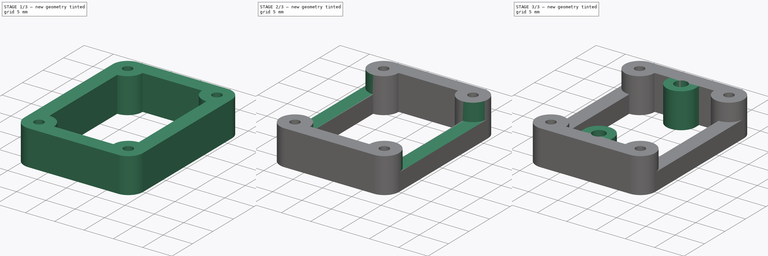
[diagram: build sequence overview — one tinted view per stage of 3, left to right]
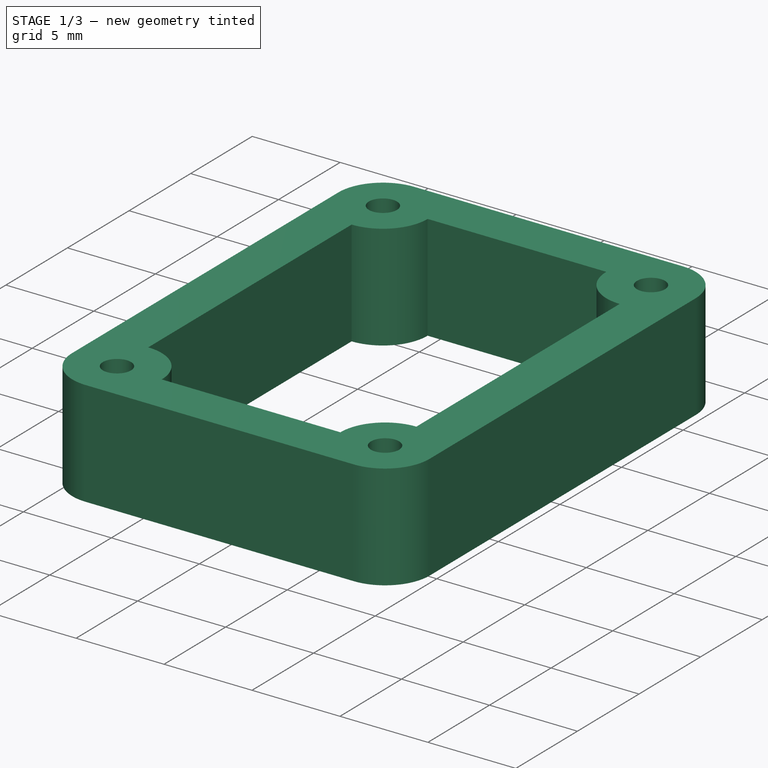
[diagram: stage 1 of 3 — iso view after this stage's code; geometry added in this stage tinted green]
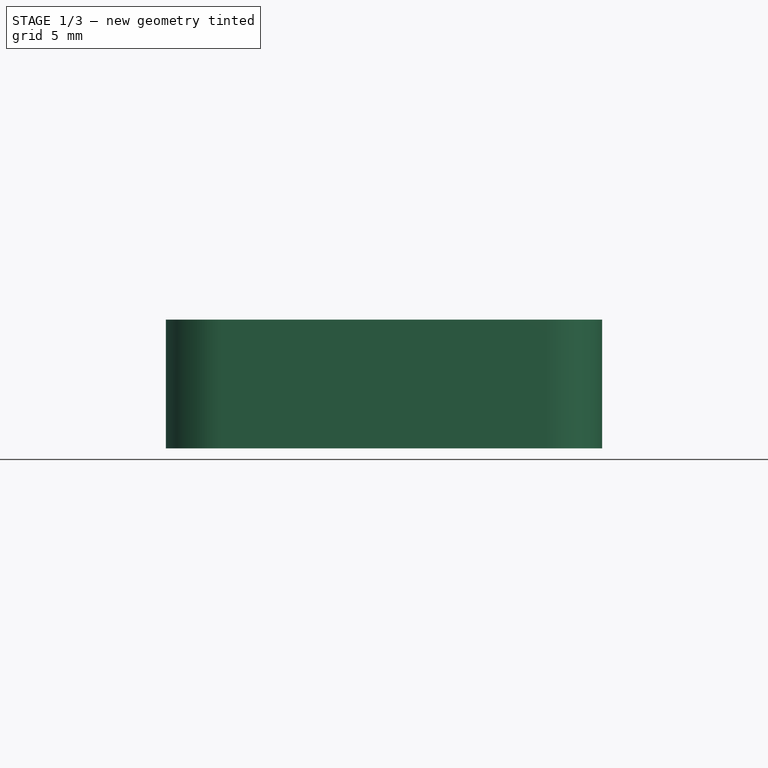
[diagram: stage 1 of 3 — front view after this stage's code; geometry added in this stage tinted green]
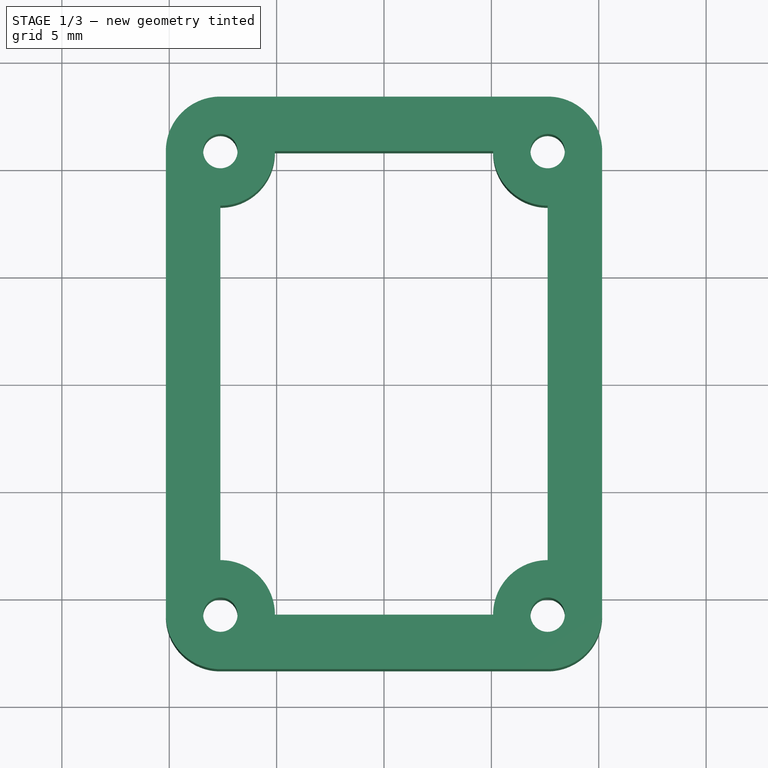
[diagram: stage 1 of 3 — top view after this stage's code; geometry added in this stage tinted green]
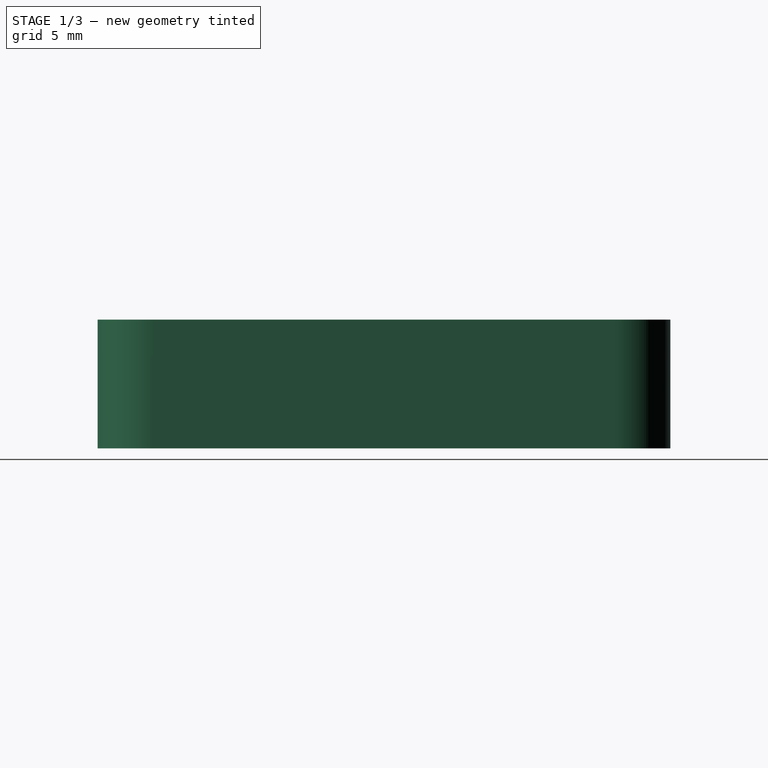
[diagram: stage 1 of 3 — right view after this stage's code; geometry added in this stage tinted green]
FCSTD DOCUMENT  (FreeCAD 0.17R13541 (Git))
Label: BNO055_offset-3mm
License: All rights reserved
LicenseURL: http://en.wikipedia.org/wiki/All_rights_reserved
objects: Sketcher::SketchObject×5, PartDesign::Pocket×3, PartDesign::Pad×2, PartDesign::Fillet×1, PartDesign::Body×1
note: 17 computed .brp shape members not serialized (recipe doc carries the construction recipe); baked Part::Feature solids carry a one-line shape summary decoded from their .brp

FEATURE [Sketcher::SketchObject] Sketch
  MapMode = 5
  Support = -> [XY_Plane]
  sketch-geometry (16):
    g0: LineSegment [constr] StartX=-7.62 StartY=10.795 StartZ=0 EndX=7.62 EndY=10.795 EndZ=0
    g1: LineSegment [constr] StartX=7.62 StartY=10.795 StartZ=0 EndX=7.62 EndY=-10.795 EndZ=0
    g2: LineSegment [constr] StartX=7.62 StartY=-10.795 StartZ=0 EndX=-7.62 EndY=-10.795 EndZ=0
    g3: LineSegment [constr] StartX=-7.62 StartY=-10.795 StartZ=0 EndX=-7.62 EndY=10.795 EndZ=0
    g4: Circle CenterX=-7.62 CenterY=10.795 CenterZ=0 NormalX=0 NormalY=0 NormalZ=1 AngleXU=0 Radius=0.8
    g5: Circle CenterX=-7.62 CenterY=-10.795 CenterZ=0 NormalX=0 NormalY=0 NormalZ=1 AngleXU=0 Radius=0.8
    g6: Circle CenterX=7.62 CenterY=-10.795 CenterZ=0 NormalX=0 NormalY=0 NormalZ=1 AngleXU=0 Radius=0.8
    g7: Circle CenterX=7.62 CenterY=10.795 CenterZ=0 NormalX=0 NormalY=0 NormalZ=1 AngleXU=0 Radius=0.8
    g8: LineSegment StartX=-7.62 StartY=13.335 StartZ=0 EndX=7.62 EndY=13.335 EndZ=0
    g9: LineSegment StartX=10.16 StartY=10.795 StartZ=0 EndX=10.16 EndY=-10.795 EndZ=0
    g10: LineSegment StartX=7.62 StartY=-13.335 StartZ=0 EndX=-7.62 EndY=-13.335 EndZ=0
    g11: LineSegment StartX=-10.16 StartY=-10.795 StartZ=0 EndX=-10.16 EndY=10.795 EndZ=0
    g12: ArcOfCircle CenterX=-7.62 CenterY=10.795 CenterZ=0 NormalX=0 NormalY=0 NormalZ=1 AngleXU=0 Radius=2.54 StartAngle=1.5708 EndAngle=3.14159
    g13: ArcOfCircle CenterX=-7.62 CenterY=-10.795 CenterZ=0 NormalX=0 NormalY=0 NormalZ=1 AngleXU=0 Radius=2.54 StartAngle=3.14159 EndAngle=4.71239
    g14: ArcOfCircle CenterX=7.62 CenterY=-10.795 CenterZ=0 NormalX=0 NormalY=0 NormalZ=1 AngleXU=0 Radius=2.54 StartAngle=4.71239 EndAngle=6.28319
    g15: ArcOfCircle CenterX=7.62 CenterY=10.795 CenterZ=0 NormalX=0 NormalY=0 NormalZ=1 AngleXU=0 Radius=2.54 StartAngle=0 EndAngle=1.5708
  constraints (39):
    c: Coincident(g0,g1)
    c: Coincident(g1,g2)
    c: Coincident(g2,g3)
    c: Coincident(g3,g0)
    c: Horizontal(g0)
    c: Horizontal(g2)
    c: Vertical(g1)
    c: Vertical(g3)
    c: Symmetric(g0,g0,g-2)
    c: Symmetric(g0,g2,g-1)
    c: DistanceX(g0,g0) = 15.24
    c: DistanceY(g3,g3) = 21.59
    c: Coincident(g4,g0)
    c: Coincident(g5,g2)
    c: Coincident(g6,g1)
    c: Coincident(g7,g0)
    c: Equal(g6,g7)
    c: Equal(g7,g4)
    c: Equal(g4,g5)
    c: Radius(g7) = 0.8
    c: Horizontal(g10)
    c: Vertical(g9)
    c: Vertical(g11)
    c: Tangent(g8,g12) = 1.5708
    c: Tangent(g11,g12) = 1.5708
    c: Tangent(g11,g13) = 1.5708
    c: Tangent(g10,g13) = 1.5708
    c: Tangent(g10,g14) = 1.5708
    c: Tangent(g9,g14) = 1.5708
    c: Tangent(g9,g15) = 1.5708
    c: Tangent(g8,g15) = 1.5708
    c: Equal(g12,g13)
    c: Equal(g13,g14)
    c: Radius(g12) = 2.54
    c: DistanceX(g11,g9) = 20.32
    c: Equal(g15,g12)
    c: DistanceY(g10,g8) = 26.67
    c: Symmetric(g8,g8,g-2)
    c: Symmetric(g8,g10,g-1)
FEATURE [PartDesign::Pad] Pad
  Length = 6
  Length2 = 100
  Profile = -> Sketch
  Type = 0
FEATURE [Sketcher::SketchObject] Sketch001
  MapMode = 5
  Placement = pos=(0,0,6) rot=(0,0,1;0rad)
  Support = -> [Pad]
  sketch-geometry (8):
    g0: LineSegment StartX=-5.08 StartY=10.795 StartZ=0 EndX=5.08 EndY=10.795 EndZ=0
    g1: LineSegment StartX=7.62 StartY=8.255 StartZ=0 EndX=7.62 EndY=-8.255 EndZ=0
    g2: LineSegment StartX=5.08 StartY=-10.795 StartZ=0 EndX=-5.08 EndY=-10.795 EndZ=0
    g3: LineSegment StartX=-7.62 StartY=-8.255 StartZ=0 EndX=-7.62 EndY=8.255 EndZ=0
    g4: ArcOfCircle CenterX=-7.62 CenterY=10.795 CenterZ=0 NormalX=0 NormalY=0 NormalZ=1 AngleXU=0 Radius=2.54 StartAngle=4.71239 EndAngle=6.28319
    g5: ArcOfCircle CenterX=7.62 CenterY=10.795 CenterZ=0 NormalX=0 NormalY=0 NormalZ=1 AngleXU=0 Radius=2.54 StartAngle=3.14159 EndAngle=4.71239
    g6: ArcOfCircle CenterX=-7.62 CenterY=-10.795 CenterZ=0 NormalX=0 NormalY=0 NormalZ=1 AngleXU=0 Radius=2.54 StartAngle=0 EndAngle=1.5708
    g7: ArcOfCircle CenterX=7.62 CenterY=-10.795 CenterZ=0 NormalX=0 NormalY=0 NormalZ=1 AngleXU=0 Radius=2.54 StartAngle=1.5708 EndAngle=3.14159
  constraints (28):
    c: Horizontal(g0)
    c: Horizontal(g2)
    c: Coincident(g1,g7)
    c: Coincident(g3,g6)
    c: PointOnObject(g6,g2)
    c: Coincident(g3,g4)
    c: Coincident(g1,g5)
    c: Coincident(g0,g5)
    c: Coincident(g0,g4)
    c: Coincident(g2,g6)
    c: Coincident(g7,g2)
    c: Equal(g2,g0)
    c: Vertical(g1)
    c: Equal(g4,g5)
    c: Equal(g5,g7)
    c: Equal(g7,g6)
    c: Equal(g3,g1)
    c: DistanceX(g4,g5) = 15.24
    c: DistanceY(g6,g4) = 21.59
    c: Vertical(g0,g2)
    c: Horizontal(g3,g1)
    c: DistanceX(g5) = 7.62
    c: DistanceY(g5) = 10.795
    c: DistanceY(g2,g0) = 21.59
    c: Radius(g4) = 2.54
    c: DistanceX(g3) = -7.62
    c: Vertical(g3)
    c: DistanceX(g1) = 7.62
FEATURE [PartDesign::Pocket] Pocket
  BaseFeature = -> Pad
  Length = 5
  Length2 = 100
  Profile = -> Sketch001
  Type = 1
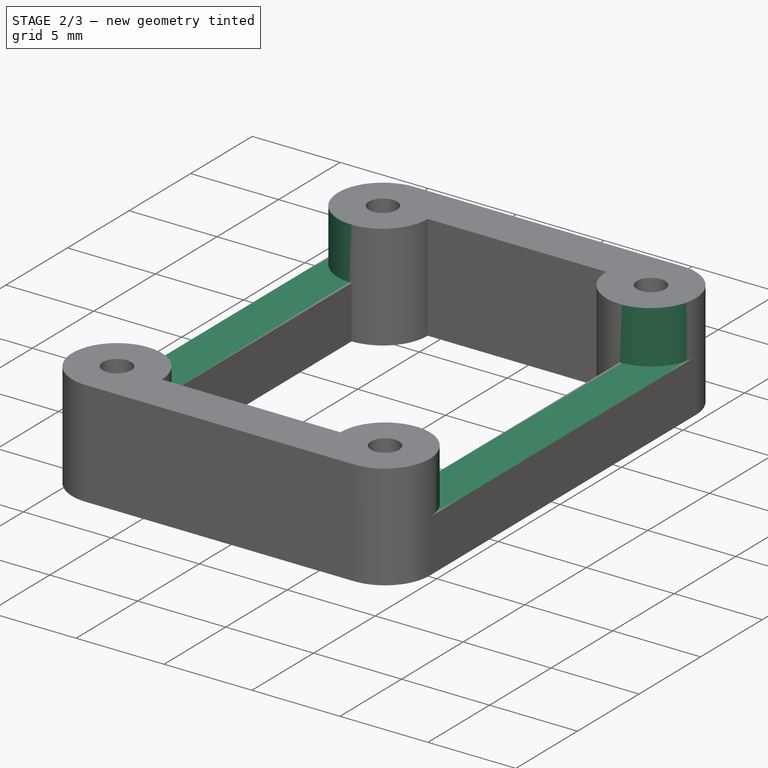
[diagram: stage 2 of 3 — iso view after this stage's code; geometry added in this stage tinted green]
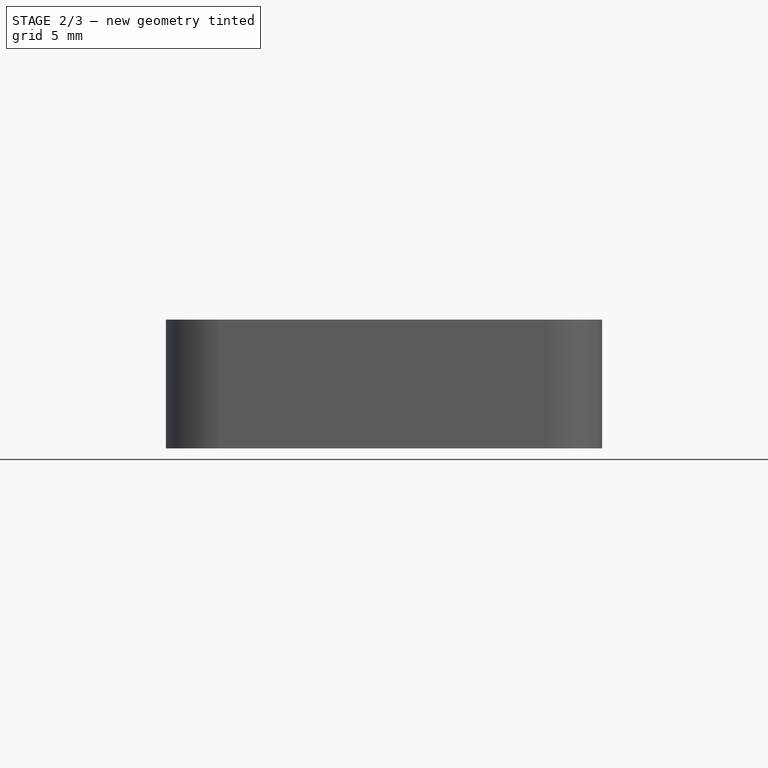
[diagram: stage 2 of 3 — front view after this stage's code; geometry added in this stage tinted green]
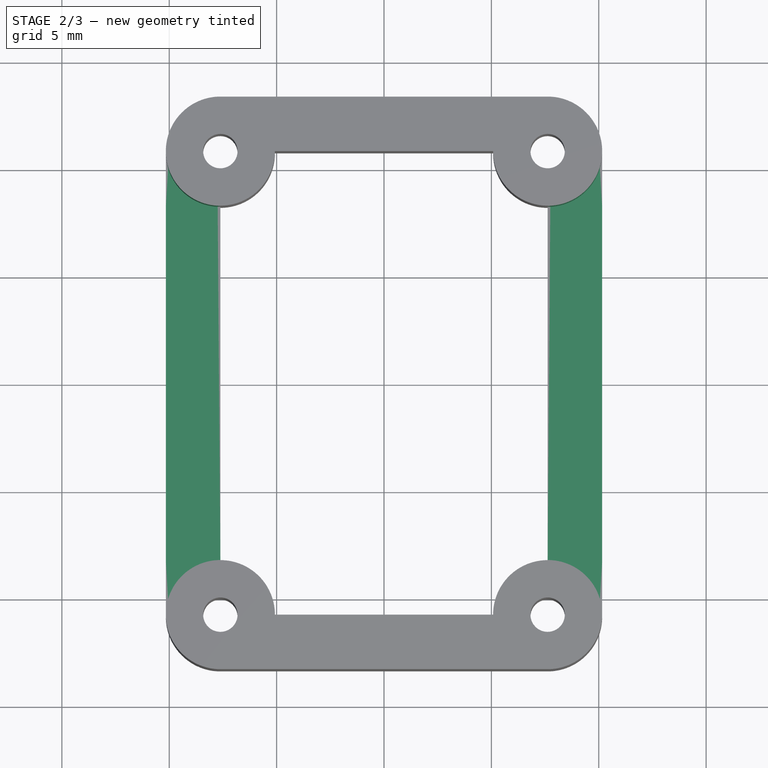
[diagram: stage 2 of 3 — top view after this stage's code; geometry added in this stage tinted green]
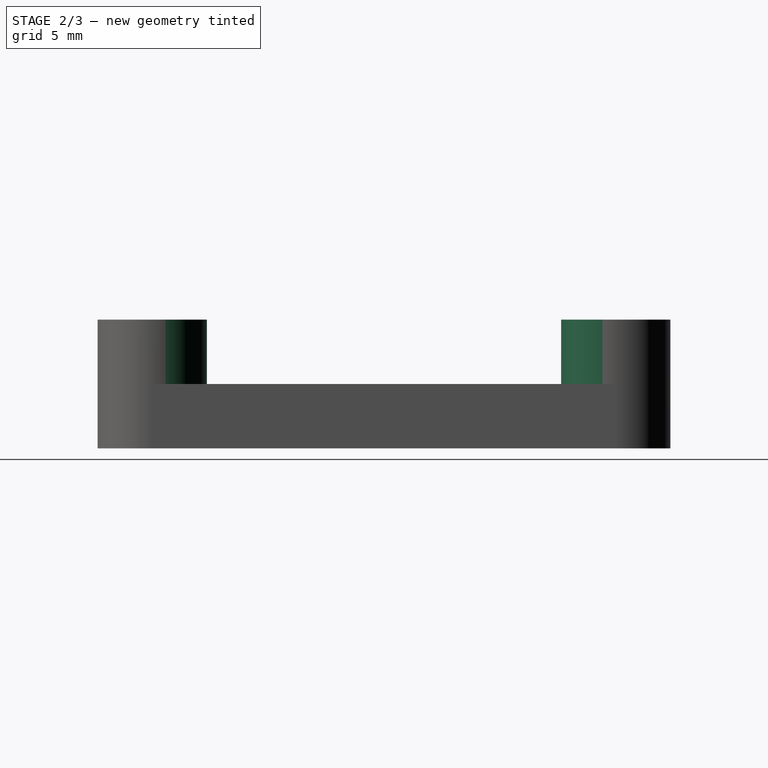
[diagram: stage 2 of 3 — right view after this stage's code; geometry added in this stage tinted green]
FEATURE [Sketcher::SketchObject] Sketch002
  MapMode = 5
  Placement = pos=(0,0,6) rot=(0,0,1;0rad)
  Support = -> [Pocket]
  sketch-geometry (4):
    g0: LineSegment StartX=-11 StartY=8.25 StartZ=0 EndX=11 EndY=8.25 EndZ=0
    g1: LineSegment StartX=11 StartY=8.25 StartZ=0 EndX=11 EndY=-8.25 EndZ=0
    g2: LineSegment StartX=11 StartY=-8.25 StartZ=0 EndX=-11 EndY=-8.25 EndZ=0
    g3: LineSegment StartX=-11 StartY=-8.25 StartZ=0 EndX=-11 EndY=8.25 EndZ=0
  constraints (12):
    c: Coincident(g0,g1)
    c: Coincident(g1,g2)
    c: Coincident(g2,g3)
    c: Coincident(g3,g0)
    c: Horizontal(g0)
    c: Horizontal(g2)
    c: Vertical(g1)
    c: Vertical(g3)
    c: DistanceY(g3,g3) = 16.5
    c: DistanceX(g2,g2) = 22
    c: DistanceX(g0) = 11
    c: DistanceY(g0) = 8.25
FEATURE [PartDesign::Pocket] Pocket001
  BaseFeature = -> Pocket
  Length = 3
  Length2 = 100
  Profile = -> Sketch002
  Type = 0
FEATURE [PartDesign::Fillet] Fillet
  Base = -> Pocket001 [Edge4,Edge6,Edge67,Edge65]
  BaseFeature = -> Pocket001
  Radius = 2.539
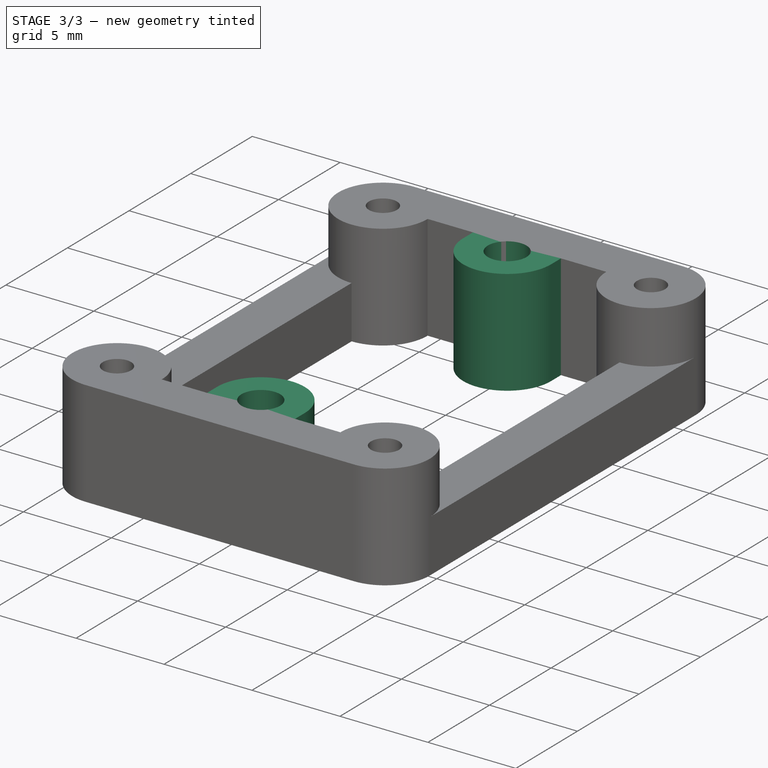
[diagram: stage 3 of 3 — iso view after this stage's code; geometry added in this stage tinted green]
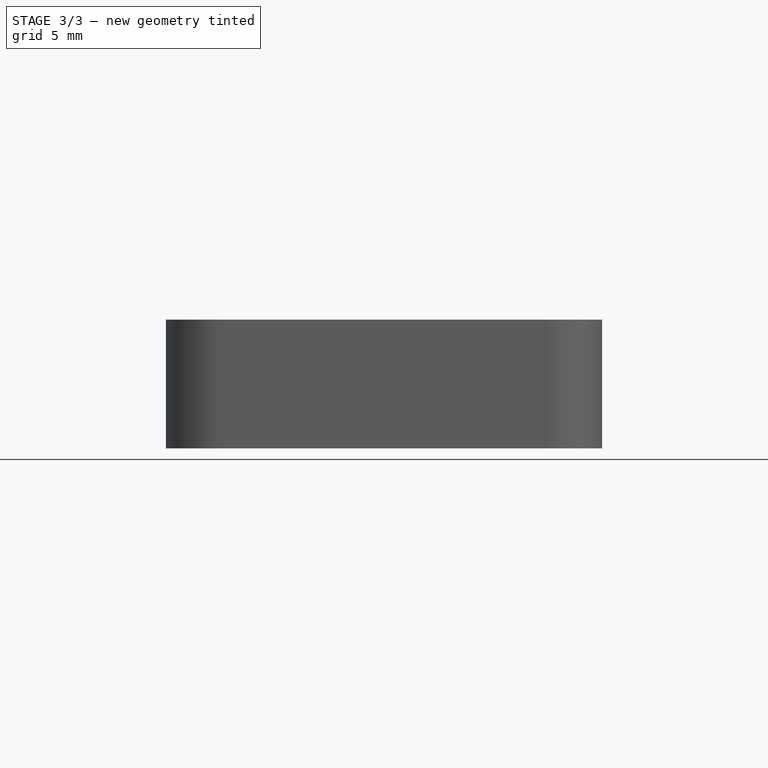
[diagram: stage 3 of 3 — front view after this stage's code; geometry added in this stage tinted green]
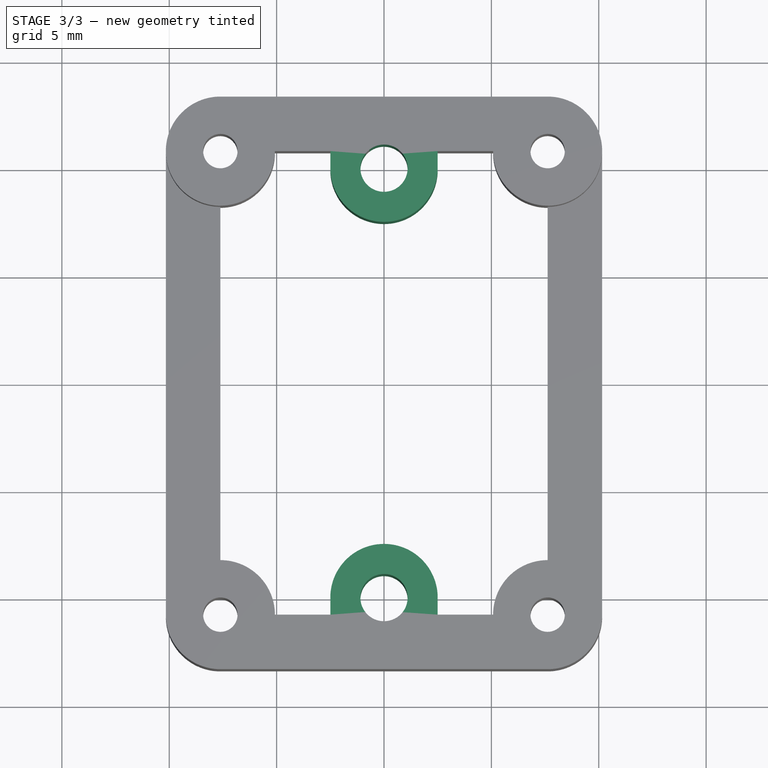
[diagram: stage 3 of 3 — top view after this stage's code; geometry added in this stage tinted green]
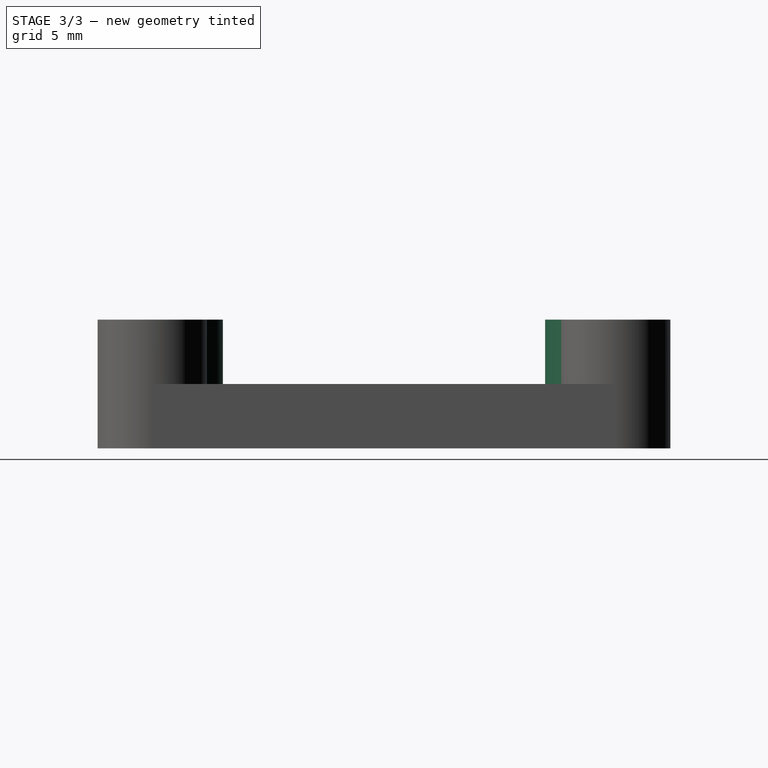
[diagram: stage 3 of 3 — right view after this stage's code; geometry added in this stage tinted green]
FEATURE [Sketcher::SketchObject] Sketch003
  MapMode = 5
  Placement = pos=(0,0,0) rot=(1,0,0;3.14159rad)
  Support = -> [Fillet]
  sketch-geometry (8):
    g0: LineSegment StartX=-2.5 StartY=10.8 StartZ=0 EndX=2.5 EndY=10.8 EndZ=0
    g1: LineSegment StartX=2.5 StartY=10.8 StartZ=0 EndX=2.5 EndY=10 EndZ=0
    g2: LineSegment StartX=-2.5 StartY=10 StartZ=0 EndX=-2.5 EndY=10.8 EndZ=0
    g3: LineSegment StartX=-2.5 StartY=-10.8 StartZ=0 EndX=2.5 EndY=-10.8 EndZ=0
    g4: LineSegment StartX=2.5 StartY=-10.8 StartZ=0 EndX=2.5 EndY=-10 EndZ=0
    g5: LineSegment StartX=-2.5 StartY=-10 StartZ=0 EndX=-2.5 EndY=-10.8 EndZ=0
    g6: ArcOfCircle CenterX=0 CenterY=-10 CenterZ=0 NormalX=0 NormalY=0 NormalZ=1 AngleXU=0 Radius=2.5 StartAngle=1.51613e-07 EndAngle=3.14159
    g7: ArcOfCircle CenterX=0 CenterY=10 CenterZ=0 NormalX=0 NormalY=0 NormalZ=1 AngleXU=0 Radius=2.5 StartAngle=3.14159 EndAngle=6.28319
  constraints (25):
    c: Coincident(g0,g1)
    c: Coincident(g2,g0)
    c: Horizontal(g0)
    c: Vertical(g1)
    c: Vertical(g2)
    c: Coincident(g3,g4)
    c: Coincident(g5,g3)
    c: Horizontal(g3)
    c: Vertical(g4)
    c: Vertical(g5)
    c: PointOnObject(g6,g-2)
    c: Coincident(g6,g4)
    c: PointOnObject(g7,g-2)
    c: Coincident(g7,g1)
    c: Equal(g1,g2)
    c: Equal(g2,g5)
    c: Equal(g5,g4)
    c: Equal(g3,g0)
    c: Coincident(g5,g6)
    c: Tangent(g7,g2) = 1.5708
    c: Tangent(g4,g6)
    c: Symmetric(g7,g6,g-1)
    c: DistanceY(g3,g0) = 21.6
    c: DistanceY(g6,g7) = 20
    c: Radius(g7) = 2.5
FEATURE [PartDesign::Pad] Pad001
  BaseFeature = -> Fillet
  Length = 6
  Length2 = 100
  Profile = -> Sketch003
  Reversed = true
  Type = 0
FEATURE [Sketcher::SketchObject] Sketch004
  MapMode = 5
  Placement = pos=(0,0,0) rot=(1,0,0;3.14159rad)
  Support = -> [Pad001]
  sketch-geometry (2):
    g0: Circle CenterX=0 CenterY=10 CenterZ=0 NormalX=0 NormalY=0 NormalZ=1 AngleXU=0 Radius=1.1
    g1: Circle CenterX=0 CenterY=-10 CenterZ=0 NormalX=0 NormalY=0 NormalZ=1 AngleXU=0 Radius=1.1
  constraints (6):
    c: PointOnObject(g0,g-2)
    c: PointOnObject(g1,g-2)
    c: Symmetric(g1,g0,g-1)
    c: Equal(g1,g0)
    c: Radius(g0) = 1.1
    c: DistanceY(g1,g0) = 20
FEATURE [PartDesign::Pocket] Pocket002
  BaseFeature = -> Pad001
  Length = 5
  Length2 = 100
  Profile = -> Sketch004
  Type = 1
FEATURE [PartDesign::Body] Body
  Group = -> [Sketch,Pad,Sketch001,Pocket,Sketch002,Pocket001,Fillet,Sketch003,Pad001,Sketch004,Pocket002]
  Origin = -> Origin
  Tip = -> Pocket002
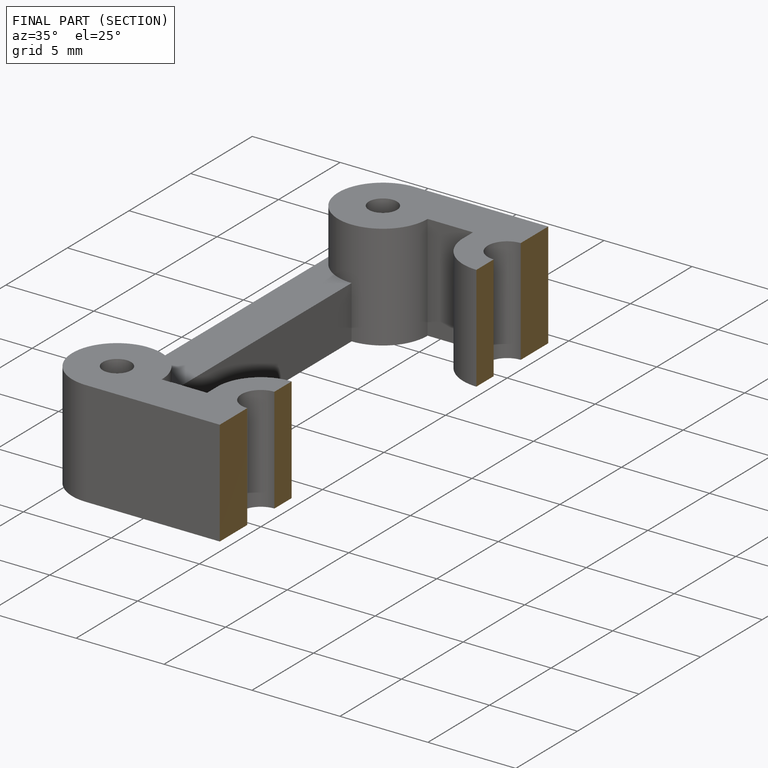
[diagram: finished part — half-section view (interior)]
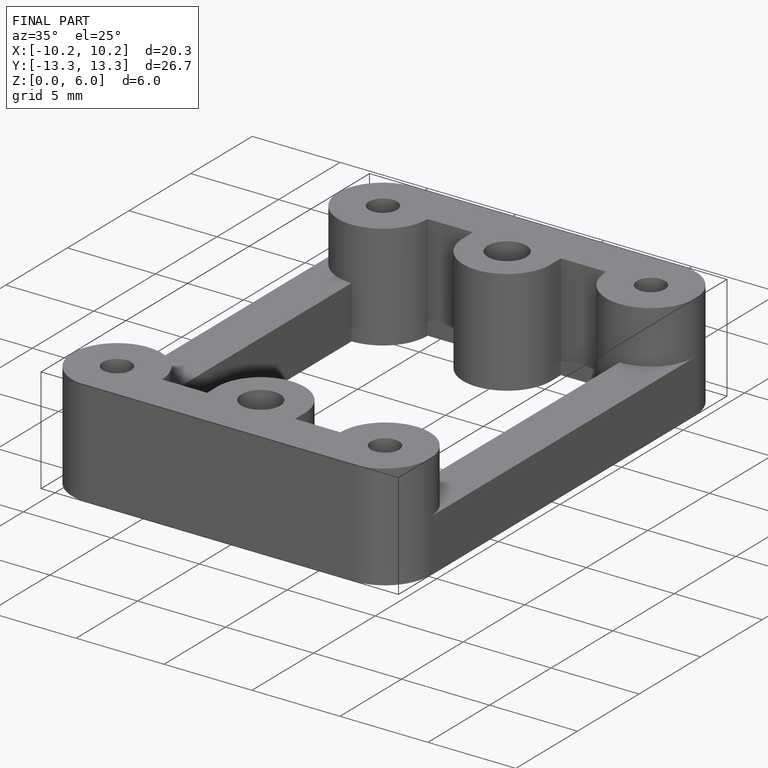
[diagram: finished part — iso view with bounding-box wireframe]
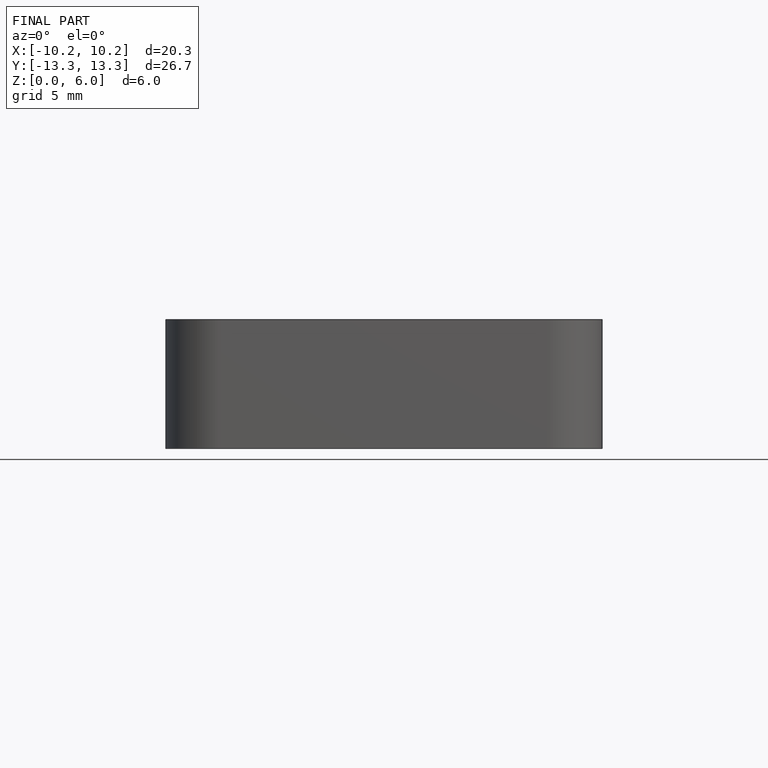
[diagram: finished part — front view with bounding-box wireframe]
